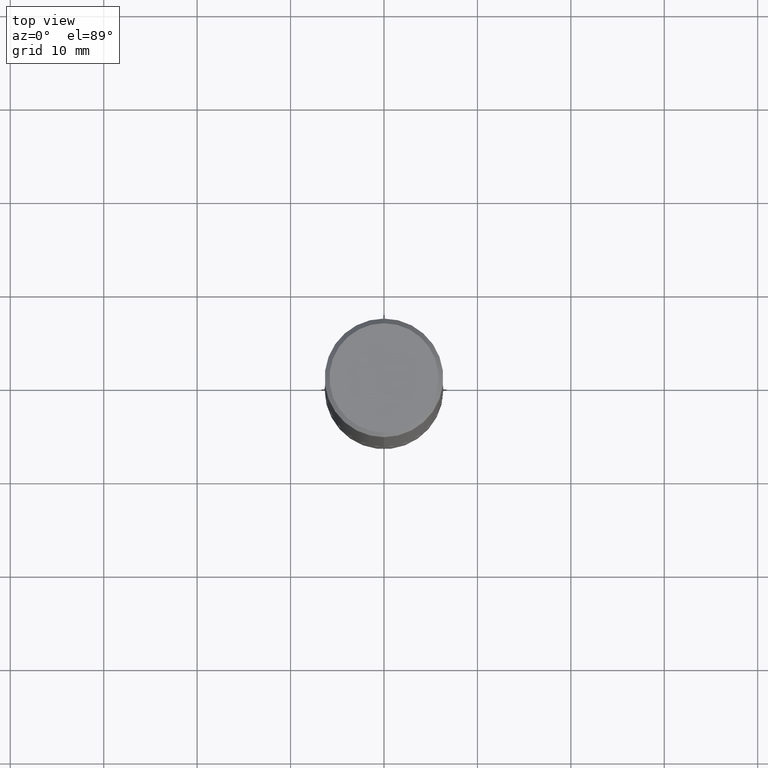
[diagram: clean part render]
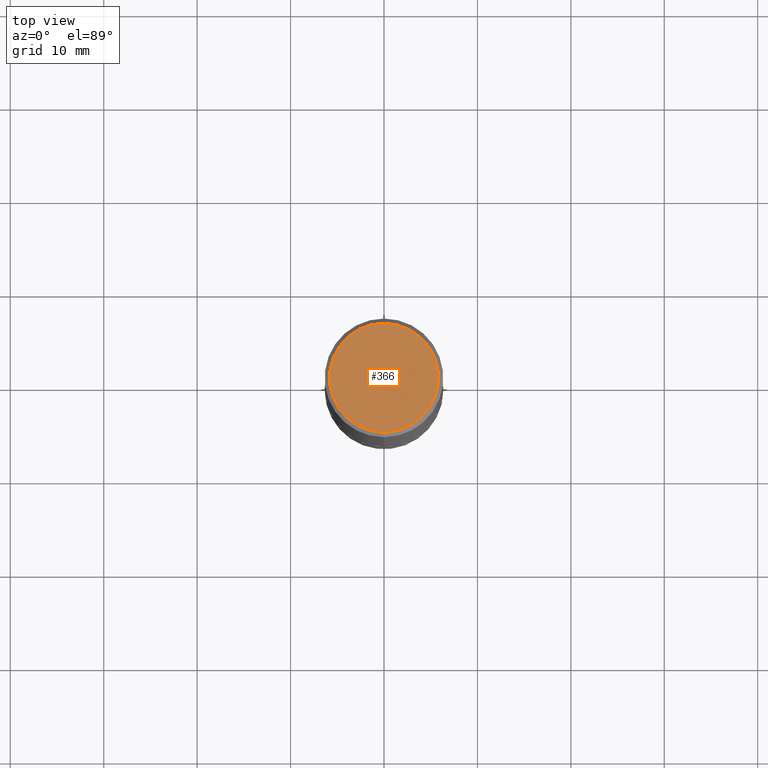
[diagram: same view with one face highlighted and labeled with its STEP entity id]
A machine part, top view. The second image highlights one B-rep face of the part: STEP entity #366.
In plain terms, the highlighted planar face has unit normal (0, -0, -1).
Its self-contained STEP definition (entity closure, byte-faithful):
#22 = FACE_OUTER_BOUND ( 'NONE', #163, .T. ) ;
#42 = AXIS2_PLACEMENT_3D ( 'NONE', #94, #310, #149 ) ;
#94 = CARTESIAN_POINT ( 'NONE',  ( 1.606081415867840476E-15, 0.2299999999999998990, -7.541233902495533824E-16 ) ) ;
#104 = VERTEX_POINT ( 'NONE', #284 ) ;
#117 = CARTESIAN_POINT ( 'NONE',  ( -2.408180616015999705E-45, 3.441161818287620017E-31, 9.851693917587945798E-17 ) ) ;
#149 = DIRECTION ( 'NONE',  ( 6.982962677686265922E-15, 1.000000000000000000, -3.492964607989102264E-15 ) ) ;
#163 = EDGE_LOOP ( 'NONE', ( #390, #321 ) ) ;
#241 = DIRECTION ( 'NONE',  ( -2.444433044876418787E-29, 3.492964607989102264E-15, 1.000000000000000000 ) ) ;
#250 = CARTESIAN_POINT ( 'NONE',  ( -2.408180616015999705E-45, 3.441161818287620017E-31, 9.851693917587945798E-17 ) ) ;
#269 = CIRCLE ( 'NONE', #364, 0.2299999999999998990 ) ;
#284 = CARTESIAN_POINT ( 'NONE',  ( -1.646519519465166770E-15, -0.2299999999999998990, 9.018987990133727913E-16 ) ) ;
#309 = EDGE_CURVE ( 'NONE', #104, #398, #386, .T. ) ;
#310 = DIRECTION ( 'NONE',  ( 2.444433044876418506E-29, -3.492964607989102264E-15, -1.000000000000000000 ) ) ;
#314 = DIRECTION ( 'NONE',  ( -6.982962677686265922E-15, -1.000000000000000000, 3.492964607989102264E-15 ) ) ;
#321 = ORIENTED_EDGE ( 'NONE', *, *, #309, .T. ) ;
#354 = AXIS2_PLACEMENT_3D ( 'NONE', #250, #241, #379 ) ;
#364 = AXIS2_PLACEMENT_3D ( 'NONE', #117, #376, #314 ) ;
#366 = ADVANCED_FACE ( 'NONE', ( #22 ), #374, .F. ) ;
#374 = PLANE ( 'NONE',  #42 ) ;
#376 = DIRECTION ( 'NONE',  ( -2.444433044876418787E-29, 3.492964607989102264E-15, 1.000000000000000000 ) ) ;
#379 = DIRECTION ( 'NONE',  ( -6.982962677686265922E-15, -1.000000000000000000, 3.492964607989102264E-15 ) ) ;
#386 = CIRCLE ( 'NONE', #354, 0.2299999999999998990 ) ;
#390 = ORIENTED_EDGE ( 'NONE', *, *, #396, .T. ) ;
#396 = EDGE_CURVE ( 'NONE', #398, #104, #269, .T. ) ;
#398 = VERTEX_POINT ( 'NONE', #412 ) ;
#412 = CARTESIAN_POINT ( 'NONE',  ( 1.675911042644703774E-15, 0.2299999999999998990, -7.048649206616136781E-16 ) ) ;